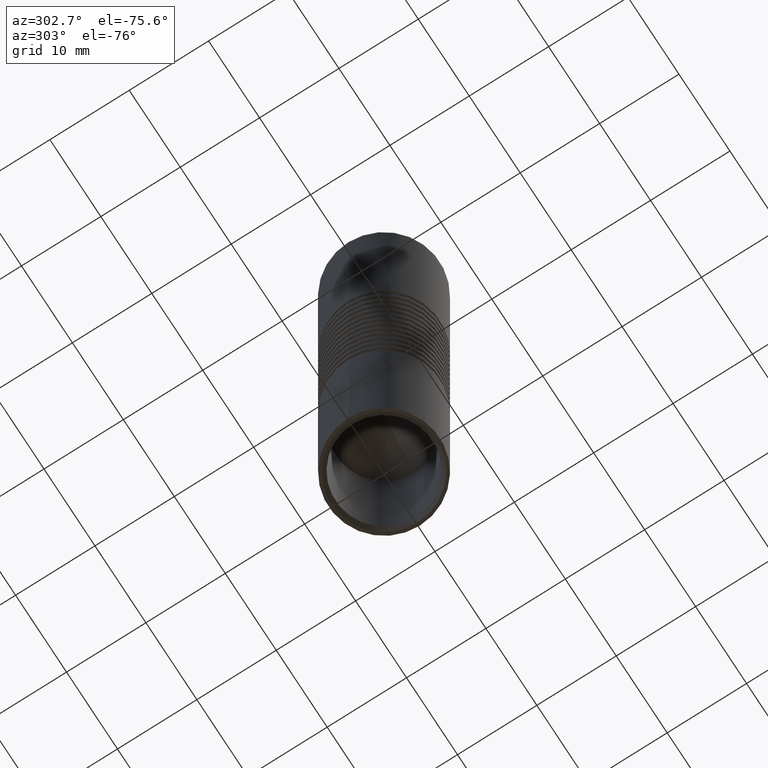
[diagram: clean part render]
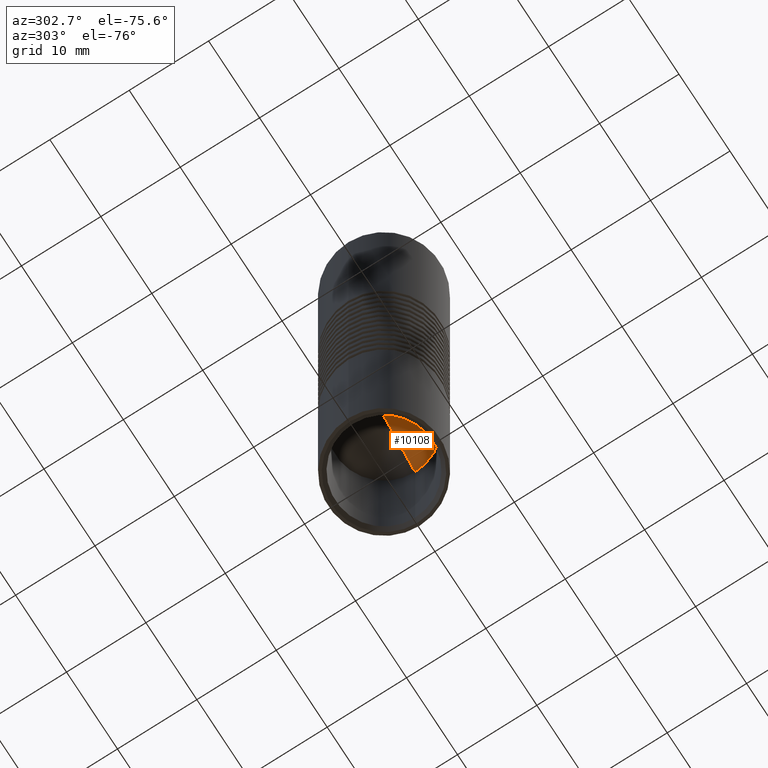
[diagram: same view with one face highlighted and labeled with its STEP entity id]
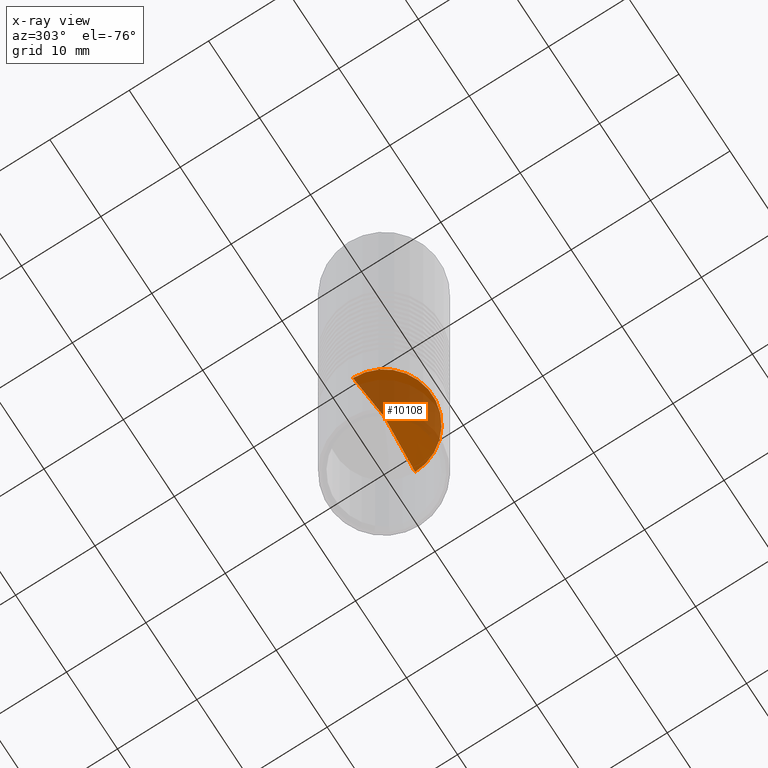
[diagram: x-ray of the same camera — body ghosted, the highlighted face saturated]
A machine part, auxiliary view. The second image highlights one B-rep face of the part: STEP entity #10108.
The next image is the same camera in x-ray: the body ghosted, the highlighted face saturated — about 53% of this face is hidden behind the body in this view.
In plain terms, the highlighted conical surface has half-angle 59 deg.
Its self-contained STEP definition (entity closure, byte-faithful):
#451 = CARTESIAN_POINT ( 'NONE',  ( 0.000000000000000000, 0.000000000000000000, -17.49999999999999645 ) ) ;
#544 = VECTOR ( 'NONE', #4781, 1000.000000000000000 ) ;
#2122 = AXIS2_PLACEMENT_3D ( 'NONE', #451, #2877, #3846 ) ;
#2877 = DIRECTION ( 'NONE',  ( -0.000000000000000000, -0.000000000000000000, 1.000000000000000000 ) ) ;
#2935 = CIRCLE ( 'NONE', #2122, 6.099999999999994316 ) ;
#3846 = DIRECTION ( 'NONE',  ( 1.000000000000000000, 0.000000000000000000, 0.000000000000000000 ) ) ;
#3869 = CARTESIAN_POINT ( 'NONE',  ( 0.000000000000000000, 0.000000000000000000, -17.49999999999999645 ) ) ;
#3976 = CARTESIAN_POINT ( 'NONE',  ( -6.099999999999994316, -7.470345474798847390E-16, -17.49999999999999645 ) ) ;
#4605 = VECTOR ( 'NONE', #14174, 1000.000000000000000 ) ;
#4680 = CARTESIAN_POINT ( 'NONE',  ( 6.099999999999994316, 0.000000000000000000, -17.49999999999999645 ) ) ;
#4781 = DIRECTION ( 'NONE',  ( 0.8571673007021118895, 0.000000000000000000, -0.5150380749100549327 ) ) ;
#5180 = EDGE_CURVE ( 'NONE', #12999, #7934, #10417, .T. ) ;
#5540 = ORIENTED_EDGE ( 'NONE', *, *, #5180, .F. ) ;
#5570 = FACE_OUTER_BOUND ( 'NONE', #10095, .T. ) ;
#5715 = EDGE_CURVE ( 'NONE', #12999, #6212, #9885, .T. ) ;
#6081 = CONICAL_SURFACE ( 'NONE', #13783, 6.099999999999994316, 1.029744258676653645 ) ;
#6133 = DIRECTION ( 'NONE',  ( 0.000000000000000000, 0.000000000000000000, -1.000000000000000000 ) ) ;
#6212 = VERTEX_POINT ( 'NONE', #4680 ) ;
#6213 = CARTESIAN_POINT ( 'NONE',  ( -5.779600511864283608E-15, 0.000000000000000000, -13.83475022393188070 ) ) ;
#6635 = CARTESIAN_POINT ( 'NONE',  ( 6.099999999999994316, 0.000000000000000000, -17.49999999999999645 ) ) ;
#7934 = VERTEX_POINT ( 'NONE', #3976 ) ;
#9394 = DIRECTION ( 'NONE',  ( 1.000000000000000000, 0.000000000000000000, 0.000000000000000000 ) ) ;
#9885 = LINE ( 'NONE', #6635, #544 ) ;
#10095 = EDGE_LOOP ( 'NONE', ( #5540, #13475, #11433 ) ) ;
#10108 = ADVANCED_FACE ( 'NONE', ( #5570 ), #6081, .F. ) ;
#10417 = LINE ( 'NONE', #10678, #4605 ) ;
#10678 = CARTESIAN_POINT ( 'NONE',  ( -6.099999999999994316, -7.470345474798847390E-16, -17.49999999999999645 ) ) ;
#11433 = ORIENTED_EDGE ( 'NONE', *, *, #12972, .F. ) ;
#12972 = EDGE_CURVE ( 'NONE', #7934, #6212, #2935, .T. ) ;
#12999 = VERTEX_POINT ( 'NONE', #6213 ) ;
#13475 = ORIENTED_EDGE ( 'NONE', *, *, #5715, .T. ) ;
#13783 = AXIS2_PLACEMENT_3D ( 'NONE', #3869, #6133, #9394 ) ;
#14174 = DIRECTION ( 'NONE',  ( -0.8571673007021118895, -1.049727191138618079E-16, -0.5150380749100549327 ) ) ;